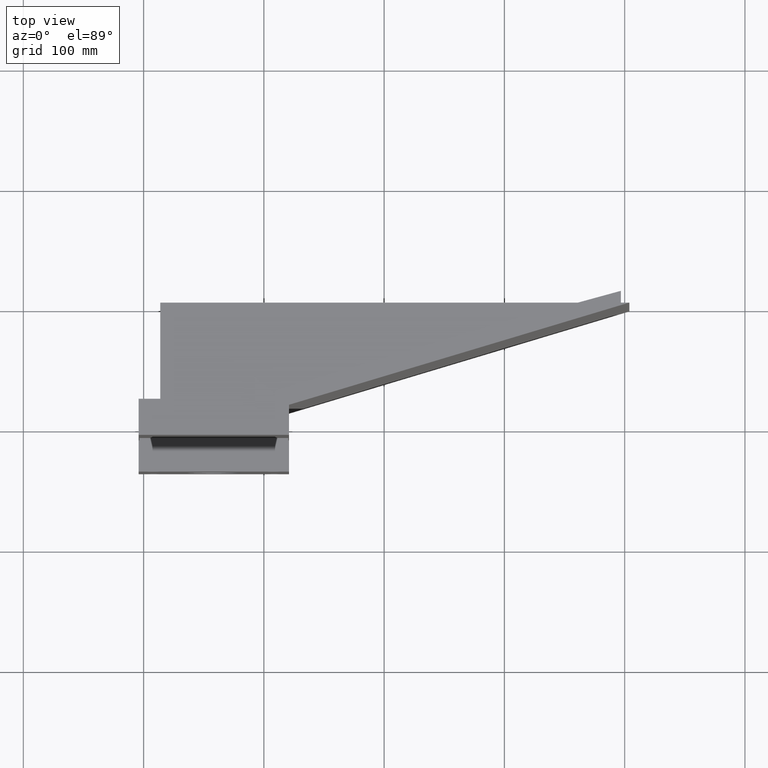
[diagram: clean part render]
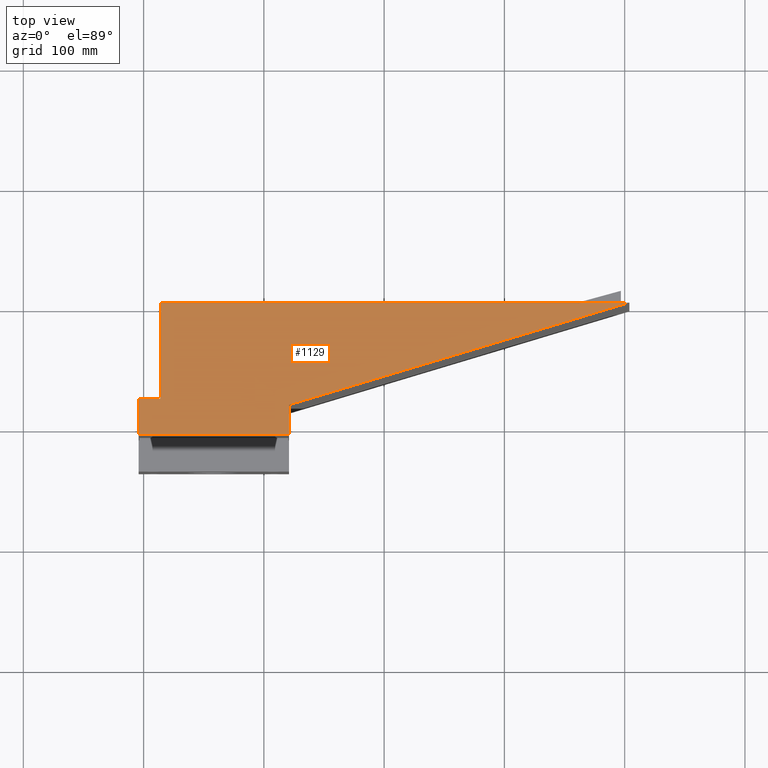
[diagram: same view with one face highlighted and labeled with its STEP entity id]
A machine part, top view. The second image highlights one B-rep face of the part: STEP entity #1129.
In plain terms, the highlighted planar face has unit normal (0, 0, -1).
Its self-contained STEP definition (entity closure, byte-faithful):
#5 = LINE ( 'NONE', #2454, #1822 ) ;
#9 = DIRECTION ( 'NONE',  ( -1.000000000000000000, 0.0000000000000000000, -0.0000000000000000000 ) ) ;
#34 = EDGE_CURVE ( 'NONE', #457, #2413, #2053, .T. ) ;
#62 = LINE ( 'NONE', #2933, #980 ) ;
#70 = EDGE_CURVE ( 'NONE', #2270, #846, #62, .T. ) ;
#160 = EDGE_CURVE ( 'NONE', #252, #2270, #2495, .T. ) ;
#170 = CARTESIAN_POINT ( 'NONE',  ( -104.1163824607965600, -110.0000000000000000, 213.0000000000000000 ) ) ;
#252 = VERTEX_POINT ( 'NONE', #2190 ) ;
#346 = CARTESIAN_POINT ( 'NONE',  ( 20.88361753920342400, -109.9999999999999900, 213.0000000000000000 ) ) ;
#355 = EDGE_CURVE ( 'NONE', #1418, #457, #517, .T. ) ;
#372 = EDGE_CURVE ( 'NONE', #1324, #1418, #1971, .T. ) ;
#405 = AXIS2_PLACEMENT_3D ( 'NONE', #2430, #1833, #9 ) ;
#457 = VERTEX_POINT ( 'NONE', #677 ) ;
#491 = ORIENTED_EDGE ( 'NONE', *, *, #34, .T. ) ;
#517 = LINE ( 'NONE', #1607, #2773 ) ;
#540 = CARTESIAN_POINT ( 'NONE',  ( -104.1163824607965600, -80.00000000000000000, 213.0000000000000000 ) ) ;
#677 = CARTESIAN_POINT ( 'NONE',  ( 303.8836175392034400, 0.0000000000000000000, 213.0000000000000000 ) ) ;
#766 = VECTOR ( 'NONE', #1022, 1000.000000000000000 ) ;
#846 = VERTEX_POINT ( 'NONE', #170 ) ;
#851 = VECTOR ( 'NONE', #1136, 1000.000000000000000 ) ;
#919 = ORIENTED_EDGE ( 'NONE', *, *, #160, .T. ) ;
#980 = VECTOR ( 'NONE', #2702, 1000.000000000000000 ) ;
#1012 = CARTESIAN_POINT ( 'NONE',  ( 20.88361753920343500, -84.99999999999998600, 213.0000000000000000 ) ) ;
#1022 = DIRECTION ( 'NONE',  ( 4.163336342344338000E-016, 1.000000000000000000, -0.0000000000000000000 ) ) ;
#1129 = ADVANCED_FACE ( 'NONE', ( #2745 ), #1687, .F. ) ;
#1136 = DIRECTION ( 'NONE',  ( -1.000000000000000000, -0.0000000000000000000, -0.0000000000000000000 ) ) ;
#1324 = VERTEX_POINT ( 'NONE', #346 ) ;
#1418 = VERTEX_POINT ( 'NONE', #2882 ) ;
#1420 = CARTESIAN_POINT ( 'NONE',  ( 296.8836175392034400, 0.0000000000000000000, 213.0000000000000000 ) ) ;
#1544 = EDGE_CURVE ( 'NONE', #846, #1324, #5, .T. ) ;
#1570 = DIRECTION ( 'NONE',  ( 1.000000000000000000, -0.0000000000000000000, -0.0000000000000000000 ) ) ;
#1607 = CARTESIAN_POINT ( 'NONE',  ( 303.8836175392034400, 0.0000000000000000000, 213.0000000000000000 ) ) ;
#1687 = PLANE ( 'NONE',  #405 ) ;
#1741 = CARTESIAN_POINT ( 'NONE',  ( -86.11638246079655800, -80.00000000000000000, 213.0000000000000000 ) ) ;
#1809 = ORIENTED_EDGE ( 'NONE', *, *, #355, .T. ) ;
#1822 = VECTOR ( 'NONE', #1570, 1000.000000000000000 ) ;
#1833 = DIRECTION ( 'NONE',  ( 0.0000000000000000000, 0.0000000000000000000, -1.000000000000000000 ) ) ;
#1843 = ORIENTED_EDGE ( 'NONE', *, *, #372, .T. ) ;
#1846 = EDGE_CURVE ( 'NONE', #2413, #252, #2264, .T. ) ;
#1866 = CARTESIAN_POINT ( 'NONE',  ( -86.11638246079655800, 0.0000000000000000000, 213.0000000000000000 ) ) ;
#1942 = CARTESIAN_POINT ( 'NONE',  ( -104.1163824607965600, -80.00000000000000000, 213.0000000000000000 ) ) ;
#1958 = DIRECTION ( 'NONE',  ( 0.9577330913444168600, 0.2876583489903725100, -0.0000000000000000000 ) ) ;
#1965 = DIRECTION ( 'NONE',  ( -1.000000000000000000, -0.0000000000000000000, -0.0000000000000000000 ) ) ;
#1969 = DIRECTION ( 'NONE',  ( -0.0000000000000000000, -1.000000000000000000, -0.0000000000000000000 ) ) ;
#1971 = LINE ( 'NONE', #1012, #766 ) ;
#2053 = LINE ( 'NONE', #1420, #851 ) ;
#2190 = CARTESIAN_POINT ( 'NONE',  ( -86.11638246079655800, -80.00000000000000000, 213.0000000000000000 ) ) ;
#2264 = LINE ( 'NONE', #1741, #2857 ) ;
#2270 = VERTEX_POINT ( 'NONE', #540 ) ;
#2396 = EDGE_LOOP ( 'NONE', ( #491, #2769, #919, #2412, #2823, #1843, #1809 ) ) ;
#2412 = ORIENTED_EDGE ( 'NONE', *, *, #70, .T. ) ;
#2413 = VERTEX_POINT ( 'NONE', #1866 ) ;
#2430 = CARTESIAN_POINT ( 'NONE',  ( 20.88361753920347000, 0.0000000000000000000, 213.0000000000000000 ) ) ;
#2454 = CARTESIAN_POINT ( 'NONE',  ( -73.11638246079655800, -110.0000000000000000, 213.0000000000000000 ) ) ;
#2495 = LINE ( 'NONE', #1942, #2825 ) ;
#2702 = DIRECTION ( 'NONE',  ( -0.0000000000000000000, -1.000000000000000000, -0.0000000000000000000 ) ) ;
#2745 = FACE_OUTER_BOUND ( 'NONE', #2396, .T. ) ;
#2769 = ORIENTED_EDGE ( 'NONE', *, *, #1846, .T. ) ;
#2773 = VECTOR ( 'NONE', #1958, 1000.000000000000100 ) ;
#2823 = ORIENTED_EDGE ( 'NONE', *, *, #1544, .T. ) ;
#2825 = VECTOR ( 'NONE', #1965, 1000.000000000000000 ) ;
#2857 = VECTOR ( 'NONE', #1969, 1000.000000000000000 ) ;
#2882 = CARTESIAN_POINT ( 'NONE',  ( 20.88361753920343500, -84.99999999999998600, 213.0000000000000000 ) ) ;
#2933 = CARTESIAN_POINT ( 'NONE',  ( -104.1163824607965600, -110.0000000000000000, 213.0000000000000000 ) ) ;